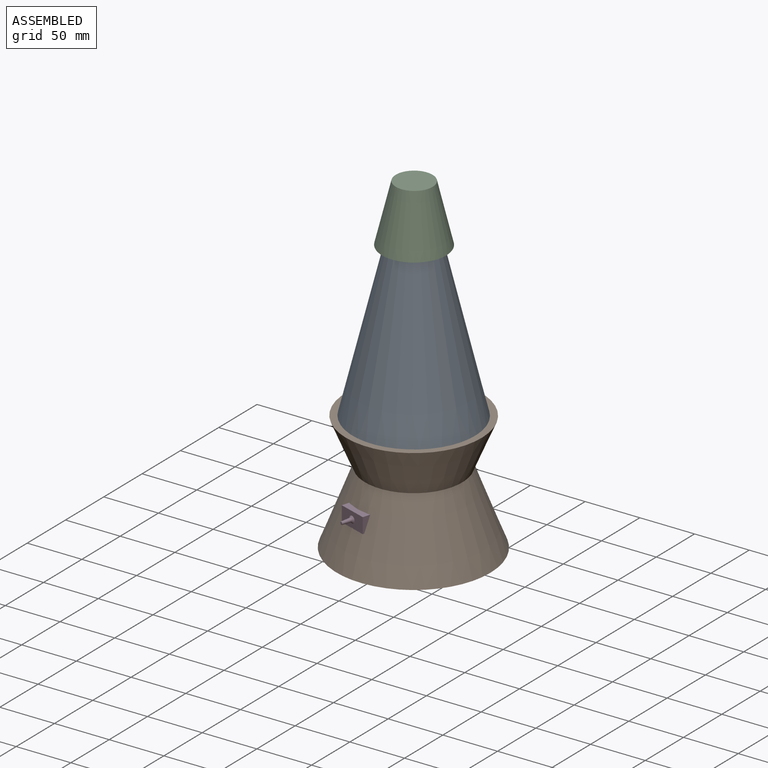
[diagram: assembled view]
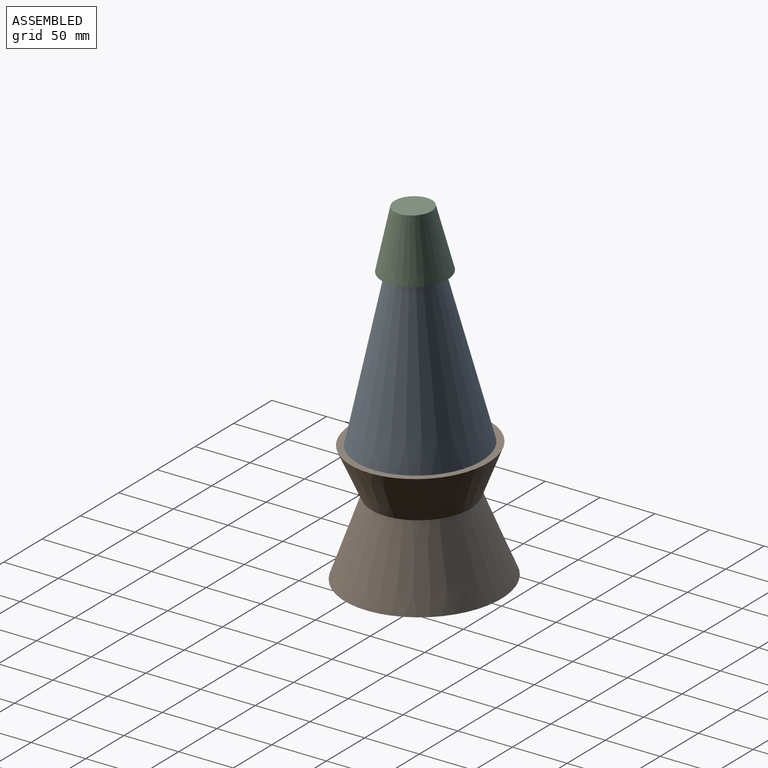
[diagram: assembled view, second angle]
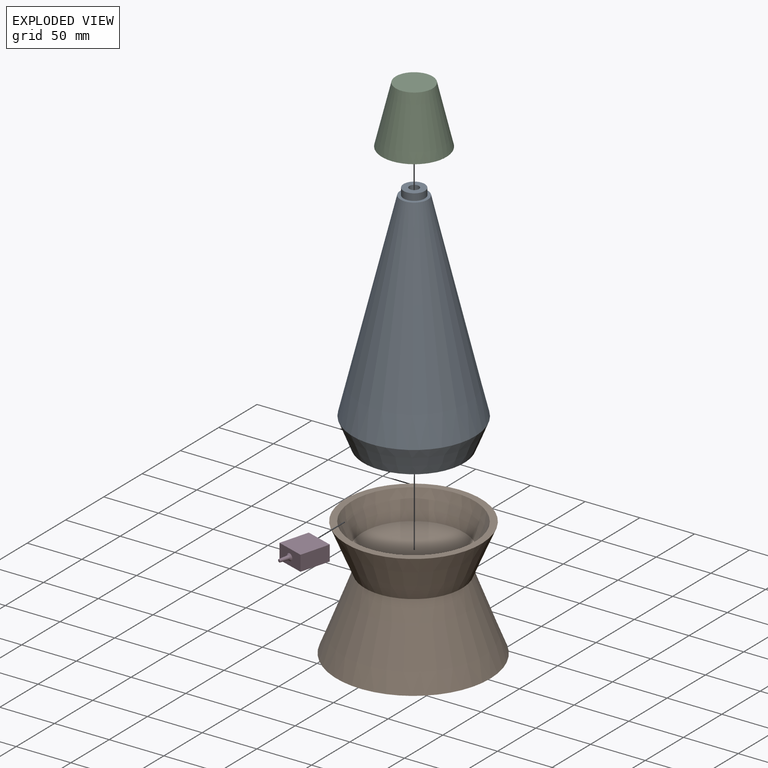
[diagram: exploded view]
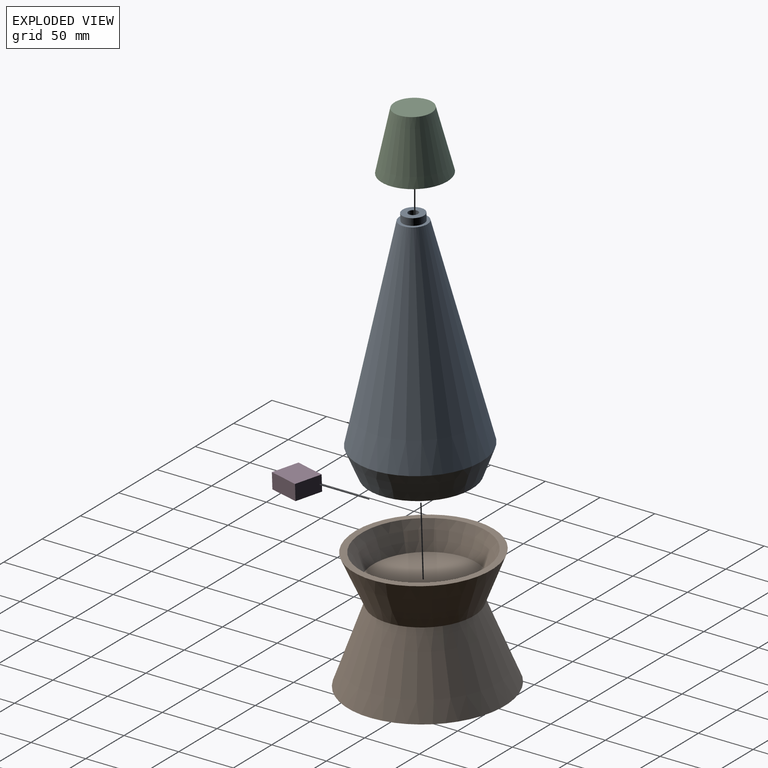
[diagram: exploded view, second angle]
ASSEMBLY  parts=4 mates=3
PART A: 12 faces, bbox 114.3x114.3x216.7 mm
  f0: plane 93.88x93.88mm, normal (0,0,-1), area 6922.8mm2, adj f1
  f1: cone r=57.15mm half-angle=21.9deg, axis (0,0,1), area 8951.9mm2, adj f0,f2
  f2: cone r=12.7mm half-angle=13.5deg, axis (0,0,-1), area 41733mm2, adj f1,f3
  f3: plane 25.4x25.4mm, normal (0,0,1), area 200mm2, adj f2,f5
  f4: cylinder r=4.45mm len=8.89mm, axis (0,0,-1), area 177.3mm2, adj f6,f7
  f5: cylinder r=9.88mm len=19.76mm, axis (0,0,-1), area 394.2mm2, adj f3,f6
  f6: plane 19.76x19.76mm, normal (0,0,1), area 244.6mm2, adj f4,f5
  f7: plane 8.89x8.89mm, normal (0,0,1), area 62.1mm2, adj f4
  f8: cone r=8.3mm half-angle=13.5deg, axis (0,0,-1), area 34590.2mm2, adj f9,f11
  f9: cone r=51.4mm half-angle=22.5deg, axis (0,0,1), area 6629mm2, adj f8,f10
  f10: plane 85.63x85.63mm, normal (0,0,1), area 5759mm2, adj f9
  f11: plane 16.59x16.59mm, normal (0,0,-1), area 216.2mm2, adj f8
PART B: 9 faces, bbox 143.3x143.3x110.4 mm
  f0: cone r=57.15mm half-angle=22.7deg, axis (0,0,1), area 8338.7mm2, adj f4,f5
  f1: plane 143.28x143.28mm, normal (0,0,-1), area 16124mm2, adj f2
  f2: cone r=45.46mm half-angle=21.1deg, axis (0,0,-1), area 26794.4mm2, adj f1,f3
  f3: cone r=63.21mm half-angle=22.7deg, axis (0,0,1), area 15703.5mm2, adj f2,f4
  f4: plane 126.41x126.41mm, normal (0,0,1), area 2290.3mm2, adj f0,f3
  f5: plane 94.7x94.7mm, normal (0,0,1), area 7043.3mm2, adj f0
  f6: plane 127x127mm, normal (0,0,1), area 12667.7mm2, adj f7
  f7: cone r=39.44mm half-angle=21.1deg, axis (0,0,-1), area 21646.9mm2, adj f6,f8
  f8: plane 78.87x78.87mm, normal (0,0,-1), area 4885.8mm2, adj f7
PART C: 5 faces, bbox 60x60x53.6 mm
  f0: plane 34.21x34.21mm, normal (0,0,1), area 919.1mm2, adj f4
  f1: plane 25.4x25.4mm, normal (0,0,-1), area 506.7mm2, adj f2
  f2: cone r=12.7mm half-angle=13.5deg, axis (0,0,-1), area 5724.2mm2, adj f1,f3
  f3: plane 59.96x59.96mm, normal (0,0,-1), area 978.8mm2, adj f2,f4
  f4: cone r=17.1mm half-angle=13.5deg, axis (0,0,-1), area 8147.7mm2, adj f0,f3
PART D: 10 faces, bbox 14.2x38.1x25.4 mm
  f0: plane 27.94x14.22mm, normal (0,0,1), area 397.4mm2, adj f1,f3,f4,f5
  f1: plane 27.94x25.4mm, normal (-1,0,0), area 709.7mm2, adj f0,f2,f4,f5
  f2: plane 27.94x14.22mm, normal (0,0,-1), area 397.4mm2, adj f1,f3,f4,f5
  f3: plane 27.94x25.4mm, normal (1,0,0), area 709.7mm2, adj f0,f2,f4,f5
  f4: plane 25.4x14.22mm, normal (0,-1,0), area 329.6mm2, adj f0,f1,f2,f3,f9
  f5: plane 25.4x14.22mm, normal (0,1,0), area 361.3mm2, adj f0,f1,f2,f3
  f6: cone r=1.91mm half-angle=3deg, axis (0,1,0), area 85.7mm2, adj f8,f9
  f7: plane 1.8x1.8mm, normal (0,-1,0), area 2.6mm2, adj f8
  f8: torus R=0.9mm, axis (0,-1,0), area 5.7mm2, adj f6,f7
  f9: cone r=1.84mm half-angle=46.5deg, axis (0,1,0), area 29mm2, adj f4,f6
PLACE A rot(axis=(0.06,0.07,-1),16.5deg) t=(361.27,-61.33,-394.32)mm
PLACE B rot(axis=(0.06,0.07,-1),16.8deg) t=(360.55,-60.45,-436.21)mm fixed
PLACE C rot(axis=(0.01,-0.01,1),128.4deg) t=(363.74,-64.36,-251.08)mm
PLACE D rot(axis=(0.15,0.98,-0.13),92.4deg) t=(386.75,-63.82,-463.7)mm
MATE slider B.f2 <-> D.f3  axis (-0.02,0.02,-1) through (359.96,-59.73,-470.26)mm
MATE cylindrical C.f2 <-> A.f5  axis (-0.02,0.02,-1) through (364.57,-65.37,-203.13)mm
MATE cylindrical A.f1 <-> B.f0  axis (-0.02,0.02,-1) through (360.83,-60.8,-419.71)mm
